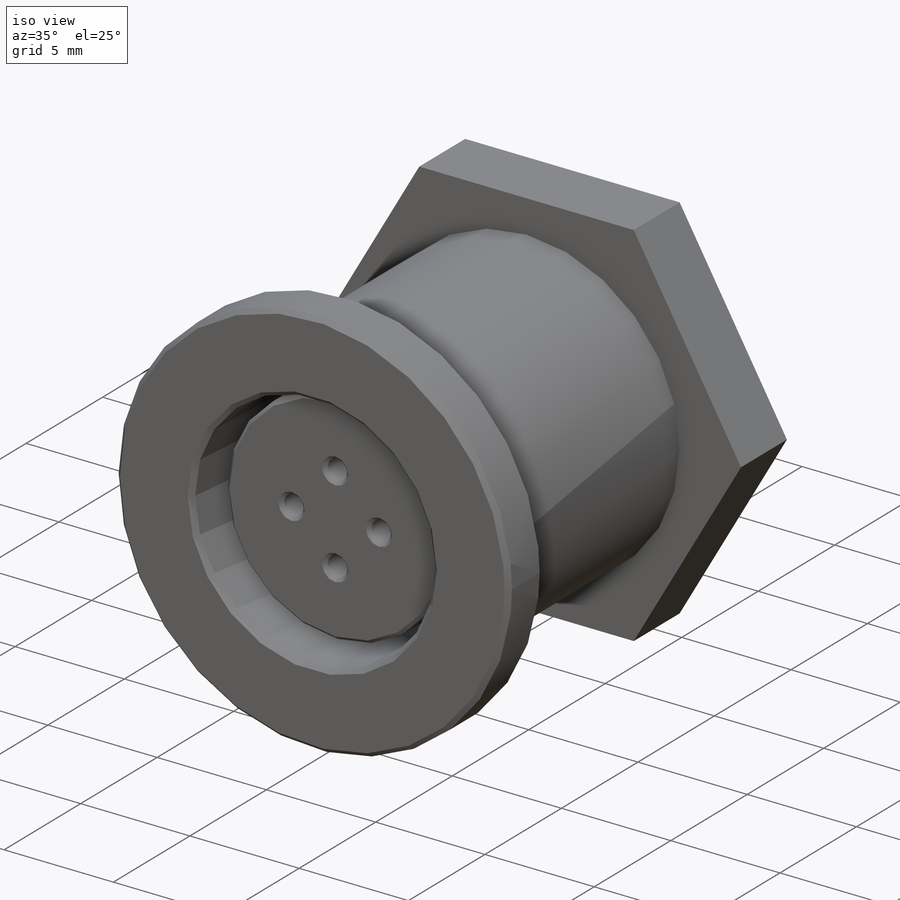
[diagram: iso view]
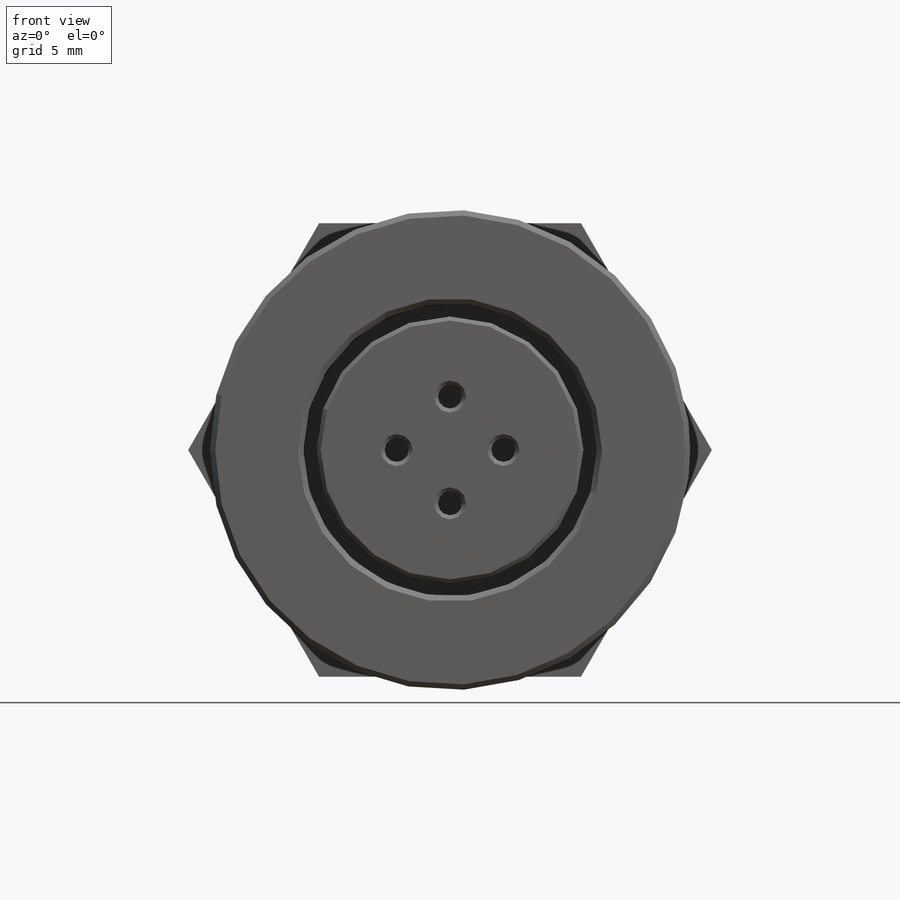
[diagram: front view]
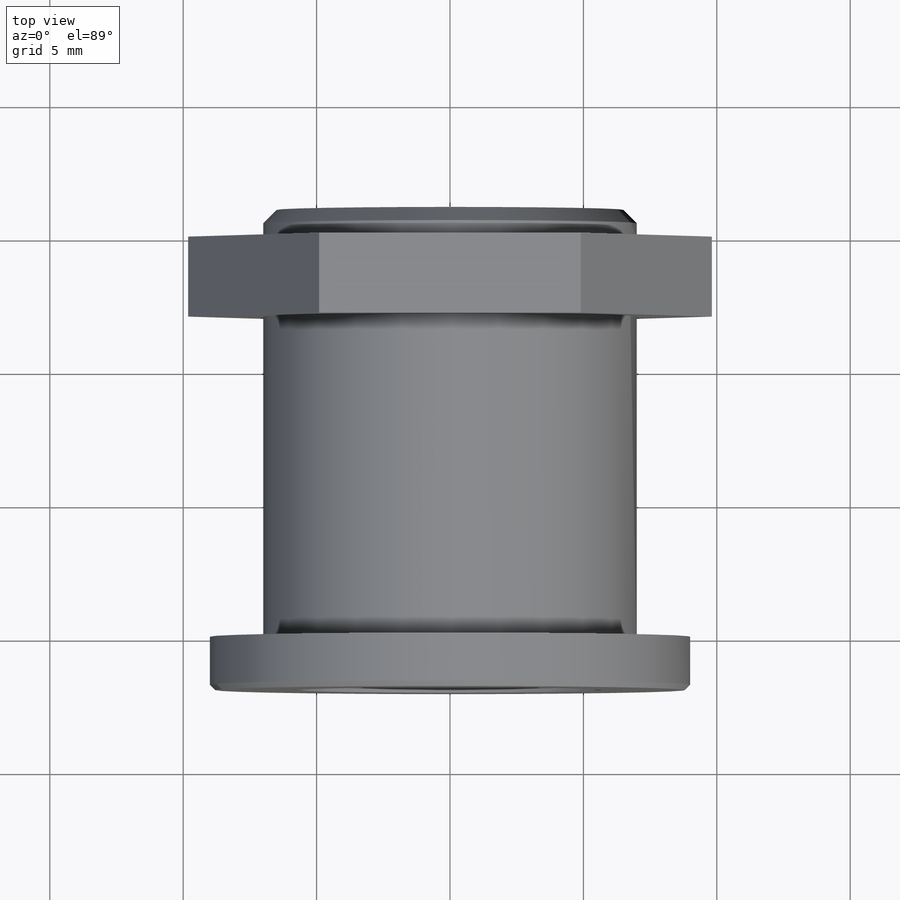
[diagram: top view]
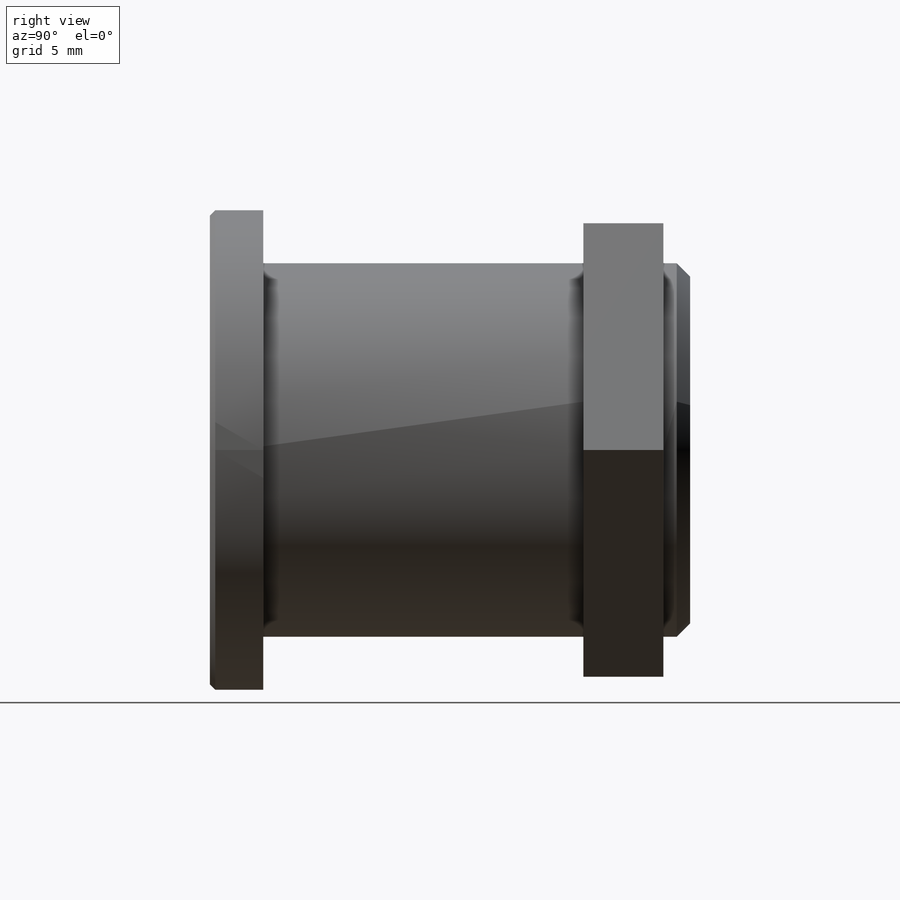
[diagram: right view]
SOLIDWORKS PART (.sldprt)
format: sldprt  version: not decoded by parser v0  size: 211,968 bytes
history: native  units: mm
features: sketch x8, extrude x4, cut_extrude x4, chamfer x3, material x1 (+11 scaffold rows collapsed)
feature tree (31):
  scaffold x11  (default folders/planes/origin — collapsed)
  material  "1060 Alloy"
  sketch  "Sketch1"  dims[D1=7.0mm]
  extrude  "Extrude1"  Depth=2mm
  sketch  "Sketch3"  dims[D1=8.5mm]
  sketch  "Sketch4"  dims[D1=5.0mm]
  extrude  "Extrude2"  Depth=16mm
  sketch  "Sketch2"  dims[D1=~4.693798mm]
  cut_extrude  "Cut-Extrude1"  Depth=10mm
  cut_extrude  "Cut-Extrude2"  Depth=1mm
  sketch  "Sketch5"  dims[D1=4.0mm]
  extrude  "Extrude3"  Depth=8.5mm
  sketch  "Sketch6"  dims[D1=2.0mm D2=2.0mm D3=2.0mm D4=2.0mm]
  cut_extrude  "Cut-Extrude3"  Depth=7mm
  chamfer  "Chamfer2"  Distance=0.15mm Angle=45deg
  chamfer  "Chamfer1"  Distance=0.2mm Angle=45deg
  sketch  "Sketch7"  dims[D1=3.5mm]
  cut_extrude  "Cut-Extrude4"  Depth=1mm
  chamfer  "Chamfer3"  Distance=0.5mm Angle=45deg
  sketch  "Sketch8"  dims[D1=17.0mm D2=17.0mm]
  extrude  "Extrude4"  Depth=3mm
decode coverage: 19 of 19 modeling features carry decoded parameters
note: ~ marks probable driven/reference dimensions
note: suppression state not decoded; provenance and decode notes live in map.json
